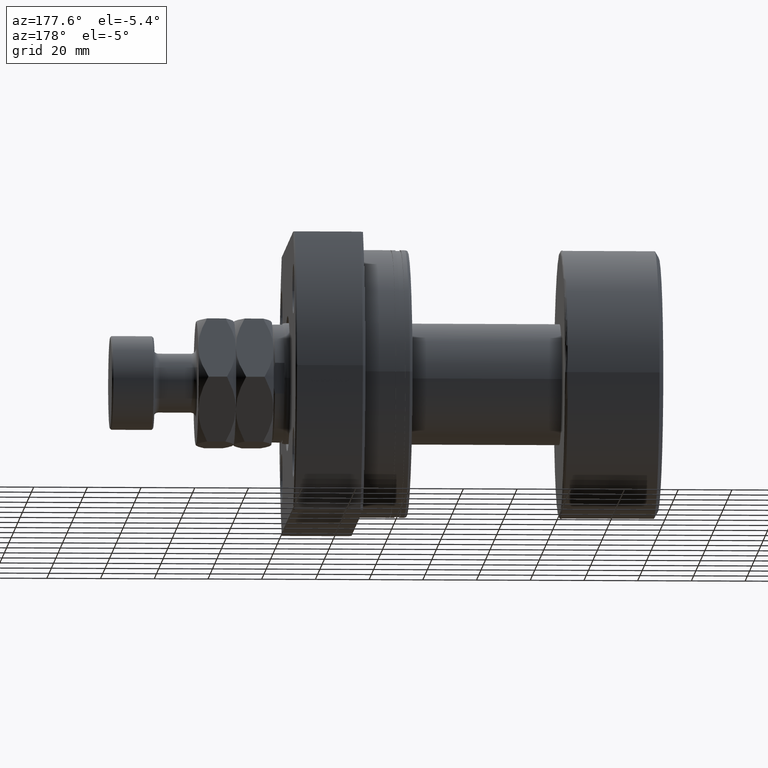
[diagram: clean part render]
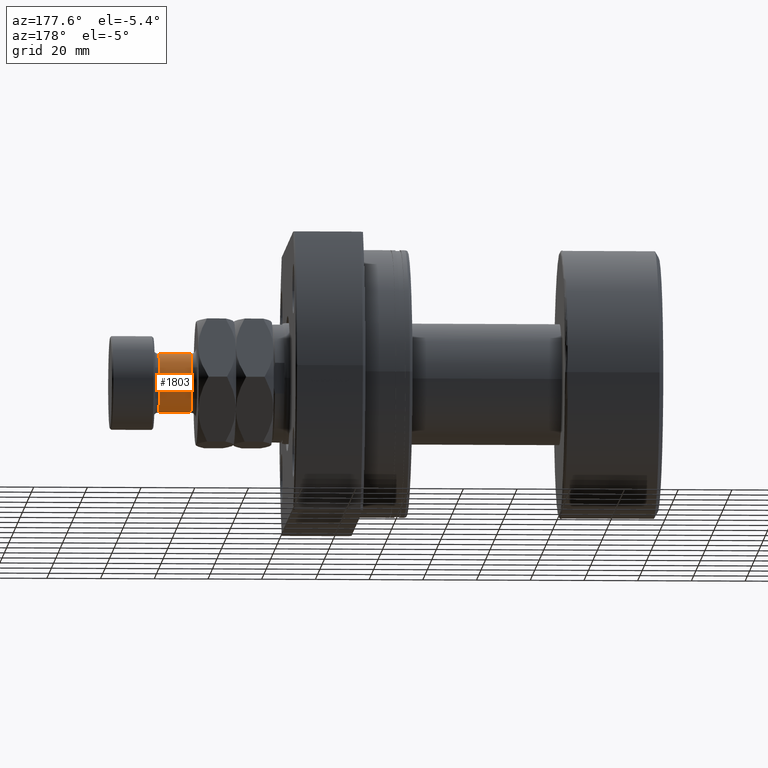
[diagram: same view with one face highlighted and labeled with its STEP entity id]
A machine part, auxiliary view. The second image highlights one B-rep face of the part: STEP entity #1803.
In plain terms, the highlighted cylindrical surface (edge-blend (fillet) strip) has radius 11 mm, axis along (-1, -0, 0).
Its self-contained STEP definition (entity closure, byte-faithful):
#147 = LINE ( 'NONE', #846, #836 ) ;
#487 = EDGE_CURVE ( 'NONE', #3558, #953, #2648, .T. ) ;
#669 = DIRECTION ( 'NONE',  ( -0.000000000000000000, -0.000000000000000000, -1.000000000000000000 ) ) ;
#674 = EDGE_CURVE ( 'NONE', #4377, #1841, #147, .T. ) ;
#740 = CARTESIAN_POINT ( 'NONE',  ( 11.00000000000000000, 1.347111479062088405E-15, 41.99999999999999289 ) ) ;
#742 = CARTESIAN_POINT ( 'NONE',  ( -11.00000000000000000, 0.000000000000000000, 44.00000000000000000 ) ) ;
#836 = VECTOR ( 'NONE', #1638, 1000.000000000000000 ) ;
#846 = CARTESIAN_POINT ( 'NONE',  ( 11.00000000000000000, 1.347111479062088405E-15, 44.00000000000000000 ) ) ;
#873 = ORIENTED_EDGE ( 'NONE', *, *, #487, .F. ) ;
#879 = CARTESIAN_POINT ( 'NONE',  ( 0.000000000000000000, 0.000000000000000000, 44.00000000000000000 ) ) ;
#953 = VERTEX_POINT ( 'NONE', #2232 ) ;
#1161 = DIRECTION ( 'NONE',  ( -0.000000000000000000, -0.000000000000000000, -1.000000000000000000 ) ) ;
#1200 = CIRCLE ( 'NONE', #3352, 11.00000000000000000 ) ;
#1638 = DIRECTION ( 'NONE',  ( -0.000000000000000000, -0.000000000000000000, -1.000000000000000000 ) ) ;
#1639 = FACE_OUTER_BOUND ( 'NONE', #4310, .T. ) ;
#1803 = ADVANCED_FACE ( 'NONE', ( #1639 ), #1993, .T. ) ;
#1841 = VERTEX_POINT ( 'NONE', #3633 ) ;
#1975 = CARTESIAN_POINT ( 'NONE',  ( -11.00000000000000000, 0.000000000000000000, 41.99999999999999289 ) ) ;
#1993 = CYLINDRICAL_SURFACE ( 'NONE', #2539, 11.00000000000000000 ) ;
#2187 = CARTESIAN_POINT ( 'NONE',  ( 0.000000000000000000, 0.000000000000000000, 41.99999999999999289 ) ) ;
#2232 = CARTESIAN_POINT ( 'NONE',  ( -11.00000000000000000, 0.000000000000000000, 30.00000000000000000 ) ) ;
#2429 = ORIENTED_EDGE ( 'NONE', *, *, #3719, .T. ) ;
#2539 = AXIS2_PLACEMENT_3D ( 'NONE', #879, #4363, #3610 ) ;
#2648 = LINE ( 'NONE', #742, #2933 ) ;
#2933 = VECTOR ( 'NONE', #1161, 1000.000000000000000 ) ;
#3118 = CIRCLE ( 'NONE', #3202, 11.00000000000000000 ) ;
#3202 = AXIS2_PLACEMENT_3D ( 'NONE', #4828, #4386, #3658 ) ;
#3352 = AXIS2_PLACEMENT_3D ( 'NONE', #2187, #669, #3765 ) ;
#3558 = VERTEX_POINT ( 'NONE', #1975 ) ;
#3610 = DIRECTION ( 'NONE',  ( -1.000000000000000000, 0.000000000000000000, 0.000000000000000000 ) ) ;
#3633 = CARTESIAN_POINT ( 'NONE',  ( 11.00000000000000000, 1.347111479062088405E-15, 30.00000000000000000 ) ) ;
#3658 = DIRECTION ( 'NONE',  ( 1.000000000000000000, 0.000000000000000000, 0.000000000000000000 ) ) ;
#3719 = EDGE_CURVE ( 'NONE', #3558, #4377, #1200, .T. ) ;
#3765 = DIRECTION ( 'NONE',  ( 1.000000000000000000, 0.000000000000000000, 0.000000000000000000 ) ) ;
#4050 = EDGE_CURVE ( 'NONE', #1841, #953, #3118, .T. ) ;
#4302 = ORIENTED_EDGE ( 'NONE', *, *, #4050, .T. ) ;
#4310 = EDGE_LOOP ( 'NONE', ( #2429, #4497, #4302, #873 ) ) ;
#4363 = DIRECTION ( 'NONE',  ( -0.000000000000000000, -0.000000000000000000, -1.000000000000000000 ) ) ;
#4377 = VERTEX_POINT ( 'NONE', #740 ) ;
#4386 = DIRECTION ( 'NONE',  ( 0.000000000000000000, 0.000000000000000000, 1.000000000000000000 ) ) ;
#4497 = ORIENTED_EDGE ( 'NONE', *, *, #674, .T. ) ;
#4828 = CARTESIAN_POINT ( 'NONE',  ( 0.000000000000000000, 0.000000000000000000, 30.00000000000000000 ) ) ;